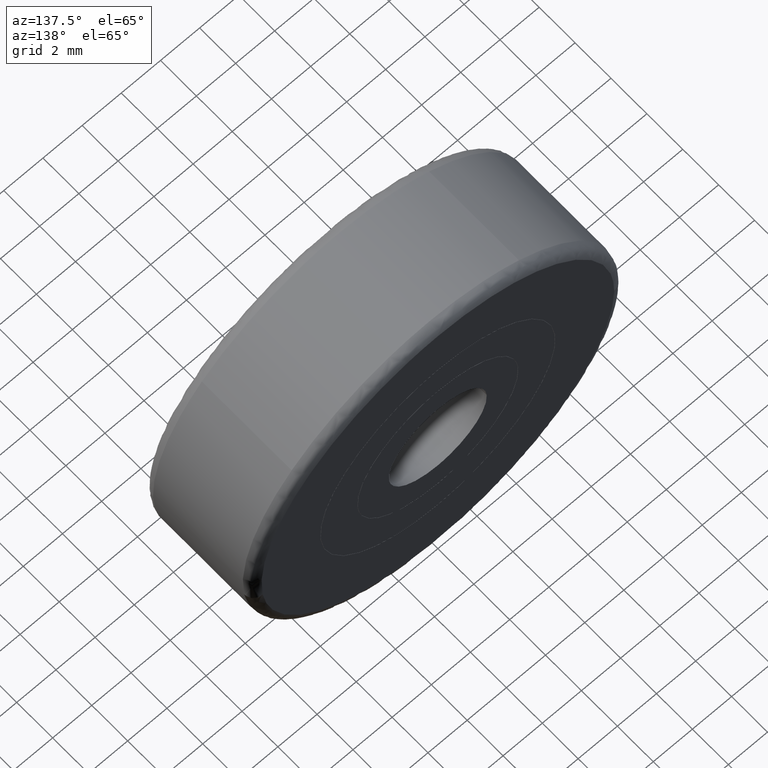
[diagram: clean part render]
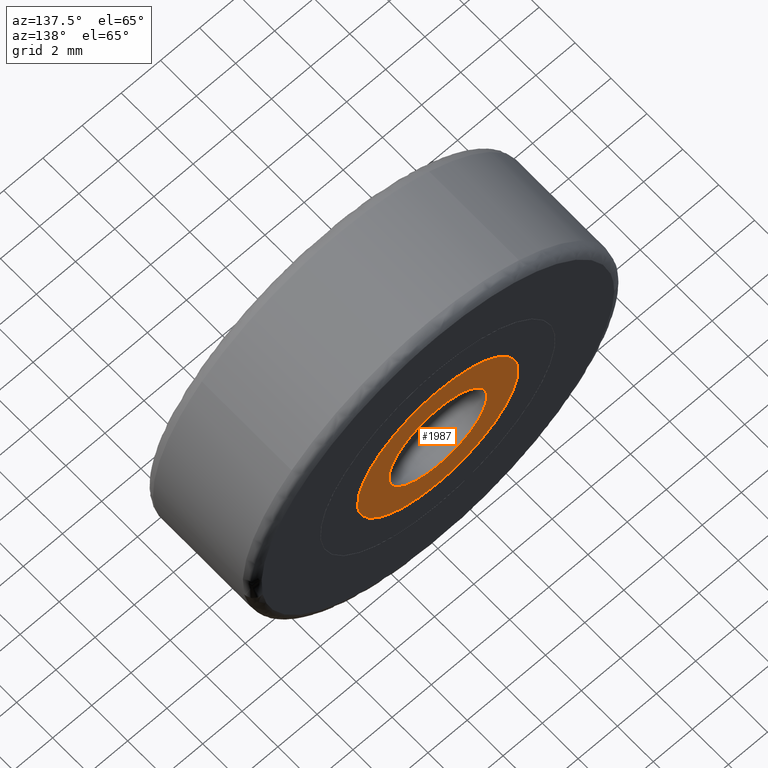
[diagram: same view with one face highlighted and labeled with its STEP entity id]
A machine part, auxiliary view. The second image highlights one B-rep face of the part: STEP entity #1987.
In plain terms, the highlighted face is a freeform B-spline surface patch.
Its self-contained STEP definition (entity closure, byte-faithful):
#1030=CARTESIAN_POINT('',(4.087361655815697,6.0,-0.321674827289124));
#1031=VERTEX_POINT('',#1030);
#1037=CARTESIAN_POINT('',(0.0,6.0,4.100000000000001));
#1038=VERTEX_POINT('',#1037);
#1039=CARTESIAN_POINT('',(4.087361655815697,6.000000000000001,-0.321674827289124));
#1040=CARTESIAN_POINT('',(4.100000000000001,6.0,-0.161085688812792));
#1041=CARTESIAN_POINT('',(4.100000000000001,6.0,0.0));
#1042=CARTESIAN_POINT('',(4.100000000000001,6.0,4.100000000000001));
#1043=CARTESIAN_POINT('',(0.0,6.0,4.100000000000001));
#1051=(BOUNDED_CURVE()B_SPLINE_CURVE(2,(#1039,#1040,#1041,#1042,#1043),.UNSPECIFIED.,.F.,.U.)B_SPLINE_CURVE_WITH_KNOTS((3,2,3),(0.736331613724143,0.750000000000000,1.0),.UNSPECIFIED.)CURVE()GEOMETRIC_REPRESENTATION_ITEM()RATIONAL_B_SPLINE_CURVE((0.969724009570551,0.983986489390715,1.0,0.707106781186547,1.0))REPRESENTATION_ITEM(''));
#1052=EDGE_CURVE('',#1031,#1038,#1051,.T.);
#1054=CARTESIAN_POINT('',(-4.087361655815697,6.0,0.321674827289124));
#1055=VERTEX_POINT('',#1054);
#1056=CARTESIAN_POINT('',(0.0,6.0,4.100000000000001));
#1057=CARTESIAN_POINT('',(-3.790007959301819,6.0,4.100000000000001));
#1058=CARTESIAN_POINT('',(-4.087361655815697,6.000000000000001,0.321674827289124));
#1066=(BOUNDED_CURVE()B_SPLINE_CURVE(2,(#1056,#1057,#1058),.UNSPECIFIED.,.F.,.U.)B_SPLINE_CURVE_WITH_KNOTS((3,3),(0.0,0.236331613724143),.UNSPECIFIED.)CURVE()GEOMETRIC_REPRESENTATION_ITEM()RATIONAL_B_SPLINE_CURVE((1.0,0.723120291795833,0.969724009570551))REPRESENTATION_ITEM(''));
#1067=EDGE_CURVE('',#1038,#1055,#1066,.T.);
#1117=CARTESIAN_POINT('',(0.0,6.0,-4.100000000000001));
#1118=VERTEX_POINT('',#1117);
#1119=CARTESIAN_POINT('',(-4.087361655815697,6.000000000000001,0.321674827289124));
#1120=CARTESIAN_POINT('',(-4.100000000000001,6.0,0.161085688812792));
#1121=CARTESIAN_POINT('',(-4.100000000000001,6.0,0.0));
#1122=CARTESIAN_POINT('',(-4.100000000000001,6.0,-4.100000000000001));
#1123=CARTESIAN_POINT('',(0.0,6.0,-4.100000000000001));
#1131=(BOUNDED_CURVE()B_SPLINE_CURVE(2,(#1119,#1120,#1121,#1122,#1123),.UNSPECIFIED.,.F.,.U.)B_SPLINE_CURVE_WITH_KNOTS((3,2,3),(0.236331613724143,0.250000000000000,0.500000000000000),.UNSPECIFIED.)CURVE()GEOMETRIC_REPRESENTATION_ITEM()RATIONAL_B_SPLINE_CURVE((0.969724009570551,0.983986489390715,1.0,0.707106781186547,1.0))REPRESENTATION_ITEM(''));
#1132=EDGE_CURVE('',#1055,#1118,#1131,.T.);
#1134=CARTESIAN_POINT('',(0.0,6.0,-4.100000000000001));
#1135=CARTESIAN_POINT('',(3.790007959301819,6.0,-4.100000000000001));
#1136=CARTESIAN_POINT('',(4.087361655815697,6.000000000000001,-0.321674827289124));
#1144=(BOUNDED_CURVE()B_SPLINE_CURVE(2,(#1134,#1135,#1136),.UNSPECIFIED.,.F.,.U.)B_SPLINE_CURVE_WITH_KNOTS((3,3),(0.500000000000000,0.736331613724143),.UNSPECIFIED.)CURVE()GEOMETRIC_REPRESENTATION_ITEM()RATIONAL_B_SPLINE_CURVE((1.0,0.723120291795833,0.969724009570551))REPRESENTATION_ITEM(''));
#1145=EDGE_CURVE('',#1118,#1031,#1144,.T.);
#1430=CARTESIAN_POINT('',(2.482523815907784,6.0,-0.295085586653524));
#1431=VERTEX_POINT('',#1430);
#1432=CARTESIAN_POINT('',(0.0,6.0,2.500000000000000));
#1433=VERTEX_POINT('',#1432);
#1434=CARTESIAN_POINT('',(2.482523815907783,6.0,-0.295085586653524));
#1435=CARTESIAN_POINT('',(2.500000000000000,6.0,-0.148060299141526));
#1436=CARTESIAN_POINT('',(2.500000000000000,6.0,-1.501658E-016));
#1437=CARTESIAN_POINT('',(2.500000000000000,6.0,2.500000000000000));
#1438=CARTESIAN_POINT('',(0.0,6.0,2.500000000000000));
#1446=(BOUNDED_CURVE()B_SPLINE_CURVE(2,(#1434,#1435,#1436,#1437,#1438),.UNSPECIFIED.,.F.,.U.)B_SPLINE_CURVE_WITH_KNOTS((3,2,3),(0.229562473514061,0.250000000000000,0.500000000000000),.UNSPECIFIED.)CURVE()GEOMETRIC_REPRESENTATION_ITEM()RATIONAL_B_SPLINE_CURVE((0.956026754184783,0.976055948331793,1.0,0.707106781186548,1.0))REPRESENTATION_ITEM(''));
#1447=EDGE_CURVE('',#1431,#1433,#1446,.T.);
#1488=CARTESIAN_POINT('',(-2.495336996053267,6.0,0.152621348860041));
#1489=VERTEX_POINT('',#1488);
#1495=CARTESIAN_POINT('',(0.0,6.0,2.500000000000000));
#1496=CARTESIAN_POINT('',(-2.351765167220983,6.000000000000001,2.500000000000000));
#1497=CARTESIAN_POINT('',(-2.495336996053267,6.000000000000001,0.152621348860041));
#1505=(BOUNDED_CURVE()B_SPLINE_CURVE(2,(#1495,#1496,#1497),.UNSPECIFIED.,.F.,.U.)B_SPLINE_CURVE_WITH_KNOTS((3,3),(0.500000000000000,0.739332962238801),.UNSPECIFIED.)CURVE()GEOMETRIC_REPRESENTATION_ITEM()RATIONAL_B_SPLINE_CURVE((1.0,0.719603993286877,0.976072041666413))REPRESENTATION_ITEM(''));
#1506=EDGE_CURVE('',#1433,#1489,#1505,.T.);
#1529=CARTESIAN_POINT('',(0.0,6.0,-2.500000000000000));
#1530=VERTEX_POINT('',#1529);
#1531=CARTESIAN_POINT('',(0.0,6.0,-2.500000000000000));
#1532=CARTESIAN_POINT('',(2.220436314857472,6.000000000000001,-2.500000000000000));
#1533=CARTESIAN_POINT('',(2.482523815907783,6.0,-0.295085586653524));
#1541=(BOUNDED_CURVE()B_SPLINE_CURVE(2,(#1531,#1532,#1533),.UNSPECIFIED.,.F.,.U.)B_SPLINE_CURVE_WITH_KNOTS((3,3),(0.0,0.229562473514061),.UNSPECIFIED.)CURVE()GEOMETRIC_REPRESENTATION_ITEM()RATIONAL_B_SPLINE_CURVE((1.0,0.731050832854755,0.956026754184783))REPRESENTATION_ITEM(''));
#1542=EDGE_CURVE('',#1530,#1431,#1541,.T.);
#1544=CARTESIAN_POINT('',(-2.495336996053267,6.000000000000001,0.152621348860041));
#1545=CARTESIAN_POINT('',(-2.500000000000001,6.0,0.076381908269435));
#1546=CARTESIAN_POINT('',(-2.500000000000000,6.0,-1.501658E-016));
#1547=CARTESIAN_POINT('',(-2.500000000000000,6.0,-2.500000000000000));
#1548=CARTESIAN_POINT('',(0.0,6.0,-2.500000000000000));
#1556=(BOUNDED_CURVE()B_SPLINE_CURVE(2,(#1544,#1545,#1546,#1547,#1548),.UNSPECIFIED.,.F.,.U.)B_SPLINE_CURVE_WITH_KNOTS((3,2,3),(0.739332962238802,0.750000000000000,1.0),.UNSPECIFIED.)CURVE()GEOMETRIC_REPRESENTATION_ITEM()RATIONAL_B_SPLINE_CURVE((0.976072041666415,0.987502787899672,1.0,0.707106781186548,1.0))REPRESENTATION_ITEM(''));
#1557=EDGE_CURVE('',#1489,#1530,#1556,.T.);
#1970=CARTESIAN_POINT('',(-4.508338486180091,6.0,4.509589907131077));
#1971=CARTESIAN_POINT('',(-4.508338486180091,6.0,-4.509590200385929));
#1972=CARTESIAN_POINT('',(4.508338706121230,6.0,4.509589907131077));
#1973=CARTESIAN_POINT('',(4.508338706121230,6.0,-4.509590200385929));
#1974=B_SPLINE_SURFACE_WITH_KNOTS('',1,1,((#1970,#1972),(#1971,#1973)),.UNSPECIFIED.,.F.,.F.,.U.,(2,2),(2,2),(0.0,9.019180107517006),(0.0,9.016677192301321),.UNSPECIFIED.);
#1975=ORIENTED_EDGE('',*,*,#1052,.F.);
#1976=ORIENTED_EDGE('',*,*,#1145,.F.);
#1977=ORIENTED_EDGE('',*,*,#1132,.F.);
#1978=ORIENTED_EDGE('',*,*,#1067,.F.);
#1979=EDGE_LOOP('',(#1975,#1976,#1977,#1978));
#1980=FACE_OUTER_BOUND('',#1979,.T.);
#1981=ORIENTED_EDGE('',*,*,#1506,.T.);
#1982=ORIENTED_EDGE('',*,*,#1557,.T.);
#1983=ORIENTED_EDGE('',*,*,#1542,.T.);
#1984=ORIENTED_EDGE('',*,*,#1447,.T.);
#1985=EDGE_LOOP('',(#1981,#1982,#1983,#1984));
#1986=FACE_BOUND('',#1985,.T.);
#1987=ADVANCED_FACE('',(#1980,#1986),#1974,.F.);